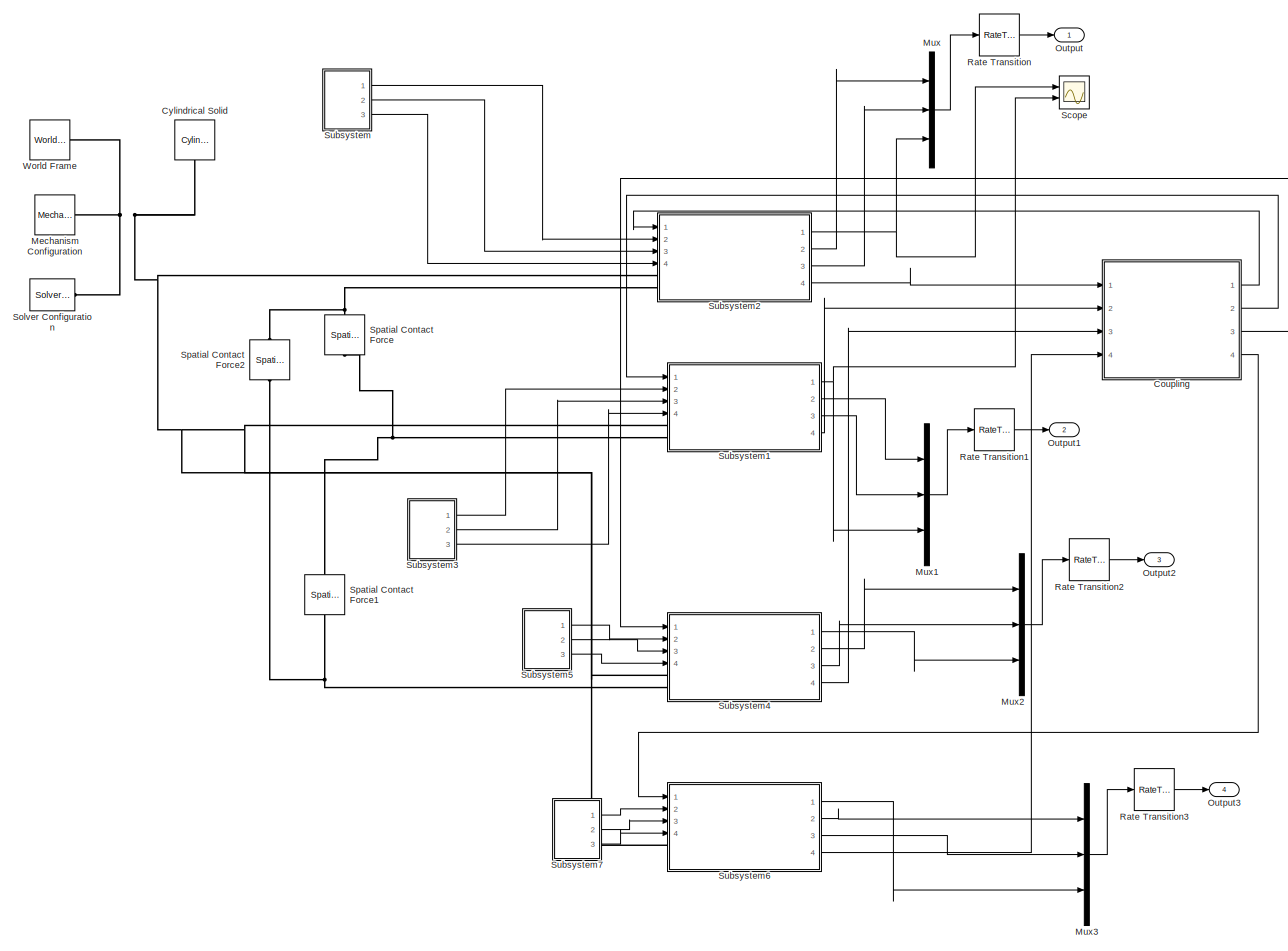
[diagram: root canvas - part 1/1, most of the canvas]
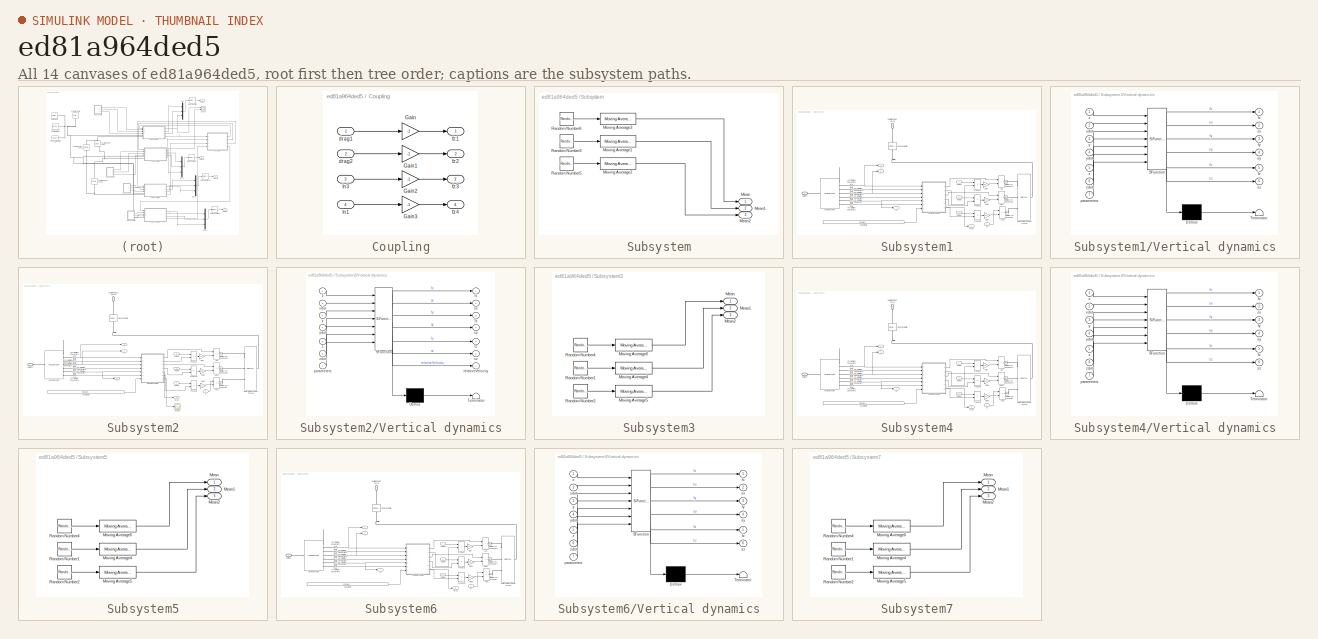
[diagram: thumbnail index - all 14 canvases of the model, root first then tree order]
MODEL slx_ed81a964ded5
KIND model
CONFIG AbsTol = auto
CONFIG EnableMultiTasking = off
CONFIG FixedStep = 0.001
CONFIG InitFcn = seed1 = randi(100000);\nseed2 = randi(200000);
CONFIG MaxStep = auto
CONFIG MinStep = auto
CONFIG RelTol = 1e-3
CONFIG SampleTimeConstraint = Unconstrained
CONFIG SolverName = VariableStepAuto
CONFIG StartTime = 0.0
CONFIG StopTime = 60*5
WORKSPACE source: mxarray member
WORKSPACE dCoupling = 10
WORKSPACE kCoupling = 10
BLOCK [SubSystem] Coupling
  Ports = [4, 4]
  RequestExecContextInheritance = off
BLOCK [Gain] Coupling/Gain
  Gain = -1
BLOCK [Gain] Coupling/Gain1
  Gain = -1
BLOCK [Gain] Coupling/Gain2
  Gain = -1
BLOCK [Gain] Coupling/Gain3
  Gain = -1
BLOCK [Inport] Coupling/In1
  Port = 4
BLOCK [Inport] Coupling/In3
  Port = 3
BLOCK [Inport] Coupling/drag1
BLOCK [Inport] Coupling/drag2
  Port = 2
BLOCK [Outport] Coupling/fz1
BLOCK [Outport] Coupling/fz2
  Port = 2
BLOCK [Outport] Coupling/fz3
  Port = 3
BLOCK [Outport] Coupling/fz4
  Port = 4
BLOCK [Reference] Cylindrical Solid  REF=sm_lib/Body Elements/Cylindrical Solid
  NameLocation = left
  Ports = [0, 0, 0, 0, 0, 0, 1]
  SourceBlock = sm_lib/Body Elements/Cylindrical Solid
  SourceProductBaseCode = MS
  SourceType = Cylindrical Solid
BLOCK [Reference] Mechanism Configuration  REF=sm_lib/Utilities/Mechanism
Configuration
  Ports = [0, 0, 0, 0, 0, 0, 1]
  SourceBlock = sm_lib/Utilities/Mechanism\nConfiguration
  SourceProductBaseCode = MS
  SourceType = Mechanism\nConfiguration
BLOCK [Mux] Mux
  DisplayOption = bar
  Inputs = 3
  Ports = [3, 1]
BLOCK [Mux] Mux1
  DisplayOption = bar
  Inputs = 3
  Ports = [3, 1]
BLOCK [Mux] Mux2
  DisplayOption = bar
  Inputs = 3
  Ports = [3, 1]
BLOCK [Mux] Mux3
  DisplayOption = bar
  Inputs = 3
  Ports = [3, 1]
BLOCK [Outport] Output
BLOCK [Outport] Output1
  Port = 2
BLOCK [Outport] Output2
  Port = 3
BLOCK [Outport] Output3
  Port = 4
BLOCK [RateTransition] Rate Transition
  OutPortSampleTime = 1/40
BLOCK [RateTransition] Rate Transition1
  OutPortSampleTime = 1/40
BLOCK [RateTransition] Rate Transition2
  OutPortSampleTime = 1/40
BLOCK [RateTransition] Rate Transition3
  OutPortSampleTime = 1/40
BLOCK [Scope] Scope
  Floating = off
  NumInputPorts = 2
  Ports = [2]
  ScopeSpecificationString = Simulink.scopes.TimeScopeBlockCfg('CurrentConfiguration', extmgr.ConfigurationSet(extmgr.Configuration('Core','General UI',true),extmgr.Configuration('Core','Source UI',true),extmgr.Configuration('Sources','WiredSimulink',true),extmgr.Configuration('Visuals','Time Domain',true,'SerializedDisplays',{struct('MinYLimReal','-0.06254','MaxYLimReal','0.5625','YLabelReal','','MinYLimMag','0.00000','MaxYL...<+1446ch>
BLOCK [Reference] Solver Configuration  REF=nesl_utility/Solver
Configuration
  Ports = [0, 0, 0, 0, 0, 0, 1]
  SourceBlock = nesl_utility/Solver\nConfiguration
  SourceProductBaseCode = SS
  SourceType = Solver\nConfiguration
BLOCK [Reference] Spatial Contact Force  REF=sm_lib/Forces and
Torques/Spatial
Contact Force
  NameLocation = left
  Ports = [0, 0, 0, 0, 0, 1, 1]
  SourceBlock = sm_lib/Forces and\nTorques/Spatial\nContact Force
  SourceProductBaseCode = MS
  SourceType = Spatial\nContact Force
BLOCK [Reference] Spatial Contact Force1  REF=sm_lib/Forces and
Torques/Spatial
Contact Force
  NameLocation = left
  Ports = [0, 0, 0, 0, 0, 1, 1]
  SourceBlock = sm_lib/Forces and\nTorques/Spatial\nContact Force
  SourceProductBaseCode = MS
  SourceType = Spatial\nContact Force
BLOCK [Reference] Spatial Contact Force2  REF=sm_lib/Forces and
Torques/Spatial
Contact Force
  NameLocation = left
  Ports = [0, 0, 0, 0, 0, 1, 1]
  SourceBlock = sm_lib/Forces and\nTorques/Spatial\nContact Force
  SourceProductBaseCode = MS
  SourceType = Spatial\nContact Force
BLOCK [SubSystem] Subsystem
  Ports = [0, 3]
  RequestExecContextInheritance = off
BLOCK [Outport] Subsystem/ Mean
BLOCK [Outport] Subsystem/ Mean1
  Port = 2
BLOCK [Outport] Subsystem/ Mean2
  Port = 3
BLOCK [Reference] Subsystem/Moving Average1  REF=eeGeneralControl/Moving Average
  Ports = [1, 1]
  SourceBlock = eeGeneralControl/Moving Average
  SourceProductBaseCode = PS
  SourceType = Moving Average
BLOCK [Reference] Subsystem/Moving Average2  REF=eeGeneralControl/Moving Average
  Ports = [1, 1]
  SourceBlock = eeGeneralControl/Moving Average
  SourceProductBaseCode = PS
  SourceType = Moving Average
BLOCK [Reference] Subsystem/Moving Average3  REF=eeGeneralControl/Moving Average
  Ports = [1, 1]
  SourceBlock = eeGeneralControl/Moving Average
  SourceProductBaseCode = PS
  SourceType = Moving Average
BLOCK [RandomNumber] Subsystem/Random Number3
  SampleTime = nS
  Seed = seedY
  Variance = nH
BLOCK [RandomNumber] Subsystem/Random Number5
  SampleTime = nS
  Seed = seedZ
  Variance = nV
BLOCK [RandomNumber] Subsystem/Random Number6
  SampleTime = nS
  Seed = seedX
  Variance = nH
BLOCK [SubSystem] Subsystem1
  Ports = [4, 4, 0, 0, 0, 2]
  RequestExecContextInheritance = off
BLOCK [Sum] Subsystem1/Add
  IconShape = rectangular
  Ports = [2, 1]
BLOCK [Sum] Subsystem1/Add1
  IconShape = rectangular
  Ports = [2, 1]
BLOCK [Sum] Subsystem1/Add2
  IconShape = rectangular
  Inputs = -+
  Ports = [2, 1]
BLOCK [PMIOPort] Subsystem1/Balloon
  Side = Left
BLOCK [Reference] Subsystem1/Cartesian Joint  REF=sm_lib/Joints/Cartesian
Joint
  Ports = [0, 0, 0, 0, 0, 1, 7]
  SourceBlock = sm_lib/Joints/Cartesian\nJoint
  SourceProductBaseCode = MS
  SourceType = Cartesian\nJoint
BLOCK [Constant] Subsystem1/Constants
  Value = [Cd, balloonRadius, rn, theta V0,normalScaling]
BLOCK [Reference] Subsystem1/External Force and Torque  REF=sm_lib/Forces and
Torques/External Force
and Torque
  Ports = [0, 0, 0, 0, 0, 3, 1]
  SourceBlock = sm_lib/Forces and\nTorques/External Force\nand Torque
  SourceProductBaseCode = MS
  SourceType = External Force\nand Torque
BLOCK [Gain] Subsystem1/Gain
  Gain = 0.1
BLOCK [Gain] Subsystem1/Gain1
  Gain = 0.1
BLOCK [Gain] Subsystem1/Gain2
  Gain = 0.1
BLOCK [Reference] Subsystem1/PS-Simulink Converter  REF=nesl_utility/PS-Simulink
Converter
  Ports = [0, 1, 0, 0, 0, 1]
  SourceBlock = nesl_utility/PS-Simulink\nConverter
  SourceProductBaseCode = SS
  SourceType = PS-Simulink\nConverter
BLOCK [Reference] Subsystem1/PS-Simulink Converter1  REF=nesl_utility/PS-Simulink
Converter
  Ports = [0, 1, 0, 0, 0, 1]
  SourceBlock = nesl_utility/PS-Simulink\nConverter
  SourceProductBaseCode = SS
  SourceType = PS-Simulink\nConverter
BLOCK [Reference] Subsystem1/PS-Simulink Converter2  REF=nesl_utility/PS-Simulink
Converter
  Ports = [0, 1, 0, 0, 0, 1]
  SourceBlock = nesl_utility/PS-Simulink\nConverter
  SourceProductBaseCode = SS
  SourceType = PS-Simulink\nConverter
BLOCK [Reference] Subsystem1/PS-Simulink Converter3  REF=nesl_utility/PS-Simulink
Converter
  Ports = [0, 1, 0, 0, 0, 1]
  SourceBlock = nesl_utility/PS-Simulink\nConverter
  SourceProductBaseCode = SS
  SourceType = PS-Simulink\nConverter
BLOCK [Reference] Subsystem1/PS-Simulink Converter4  REF=nesl_utility/PS-Simulink
Converter
  Ports = [0, 1, 0, 0, 0, 1]
  SourceBlock = nesl_utility/PS-Simulink\nConverter
  SourceProductBaseCode = SS
  SourceType = PS-Simulink\nConverter
BLOCK [Reference] Subsystem1/PS-Simulink Converter5  REF=nesl_utility/PS-Simulink
Converter
  Ports = [0, 1, 0, 0, 0, 1]
  SourceBlock = nesl_utility/PS-Simulink\nConverter
  SourceProductBaseCode = SS
  SourceType = PS-Simulink\nConverter
BLOCK [Product] Subsystem1/Product
  Ports = [2, 1]
BLOCK [Product] Subsystem1/Product1
  Ports = [2, 1]
BLOCK [Product] Subsystem1/Product2
  Ports = [2, 1]
BLOCK [Reference] Subsystem1/Simulink-PS Converter  REF=nesl_utility/Simulink-PS
Converter
  Ports = [1, 0, 0, 0, 0, 0, 1]
  SourceBlock = nesl_utility/Simulink-PS\nConverter
  SourceProductBaseCode = SS
  SourceType = Simulink-PS\nConverter
BLOCK [Reference] Subsystem1/Simulink-PS Converter1  REF=nesl_utility/Simulink-PS
Converter
  Ports = [1, 0, 0, 0, 0, 0, 1]
  SourceBlock = nesl_utility/Simulink-PS\nConverter
  SourceProductBaseCode = SS
  SourceType = Simulink-PS\nConverter
BLOCK [Reference] Subsystem1/Simulink-PS Converter2  REF=nesl_utility/Simulink-PS
Converter
  Ports = [1, 0, 0, 0, 0, 0, 1]
  SourceBlock = nesl_utility/Simulink-PS\nConverter
  SourceProductBaseCode = SS
  SourceType = Simulink-PS\nConverter
BLOCK [PMIOPort] Subsystem1/Spatial Contact Force
  NameLocation = left
  Port = 2
  Side = Left
BLOCK [Reference] Subsystem1/Spherical Solid  REF=sm_lib/Body Elements/Spherical Solid
  NameLocation = left
  Ports = [0, 0, 0, 0, 0, 1, 1]
  SourceBlock = sm_lib/Body Elements/Spherical Solid
  SourceProductBaseCode = MS
  SourceType = Spherical Solid
BLOCK [SubSystem] Subsystem1/Vertical dynamics
  ErrorFcn = Stateflow.Translate.translate
  PermitHierarchicalResolution = ExplicitOnly
  Ports = [7, 6]
  RequestExecContextInheritance = off
  SFBlockType = MATLAB Function
  TreatAsAtomicUnit = on
BLOCK [Demux] Subsystem1/Vertical dynamics/ Demux 
  Outputs = 1
  Ports = [1, 1]
BLOCK [S-Function] Subsystem1/Vertical dynamics/ SFunction 
  EnableBusSupport = on
  FunctionName = sf_sfun
  PortCounts = [7 7]
  Ports = [7, 7]
  SFcnIsStateOwnerBlock = off
  SFunctionDeploymentMode = off
  Tag = Stateflow S-Function 4
BLOCK [Terminator] Subsystem1/Vertical dynamics/ Terminator 
BLOCK [Outport] Subsystem1/Vertical dynamics/fx
BLOCK [Outport] Subsystem1/Vertical dynamics/fy
  Port = 3
BLOCK [Outport] Subsystem1/Vertical dynamics/fz
  Port = 5
BLOCK [Inport] Subsystem1/Vertical dynamics/parameters
  Port = 7
BLOCK [Outport] Subsystem1/Vertical dynamics/sx
  Port = 2
BLOCK [Outport] Subsystem1/Vertical dynamics/sy
  Port = 4
BLOCK [Outport] Subsystem1/Vertical dynamics/sz
  Port = 6
BLOCK [Inport] Subsystem1/Vertical dynamics/x
BLOCK [Inport] Subsystem1/Vertical dynamics/xdot
  Port = 2
BLOCK [Inport] Subsystem1/Vertical dynamics/y
  Port = 3
BLOCK [Inport] Subsystem1/Vertical dynamics/ydot
  Port = 4
BLOCK [Inport] Subsystem1/Vertical dynamics/z
  Port = 5
BLOCK [Inport] Subsystem1/Vertical dynamics/zdot
  Port = 6
BLOCK [Inport] Subsystem1/X Noise
  Port = 2
BLOCK [Inport] Subsystem1/Y Noise
  Port = 3
BLOCK [Inport] Subsystem1/Z Noise
  Port = 4
BLOCK [Outport] Subsystem1/drag
  NameLocation = top
  Port = 4
BLOCK [Inport] Subsystem1/fz
BLOCK [Outport] Subsystem1/x
  Port = 2
BLOCK [Outport] Subsystem1/y
  Port = 3
BLOCK [Outport] Subsystem1/z
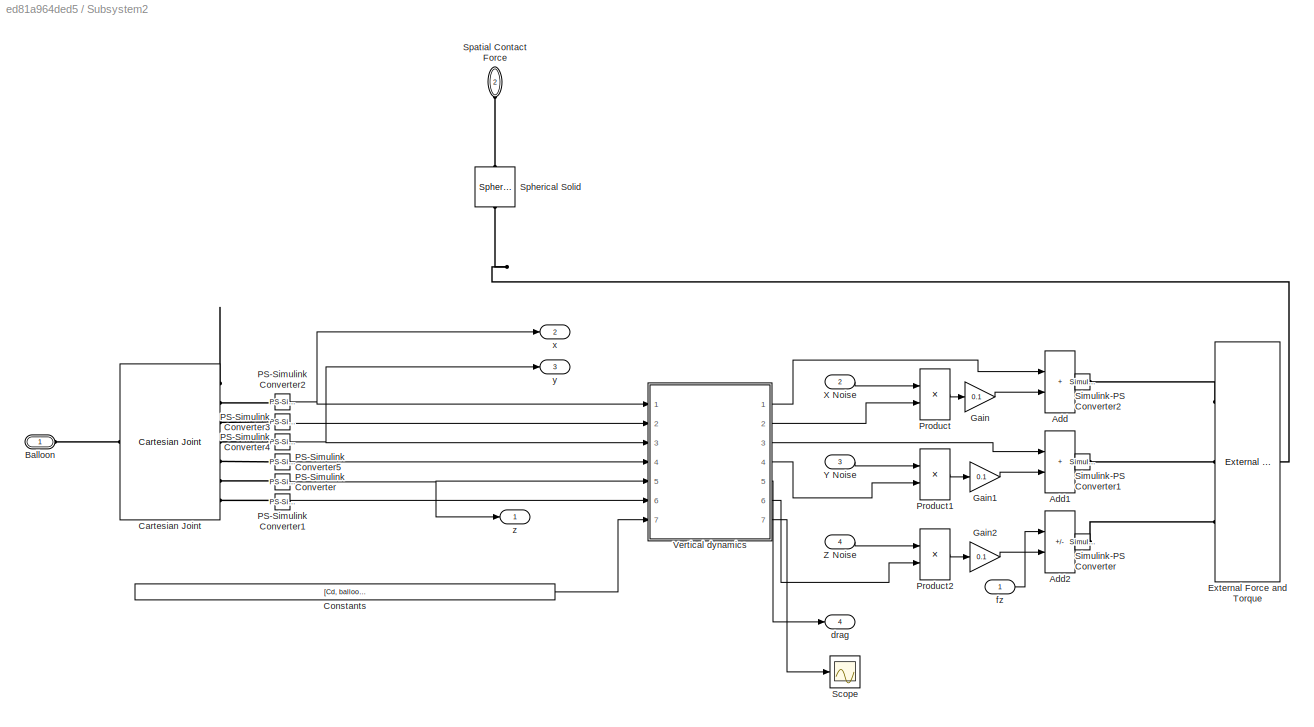
BLOCK [SubSystem] Subsystem2
  Ports = [4, 4, 0, 0, 0, 2]
  RequestExecContextInheritance = off
BLOCK [Sum] Subsystem2/Add
  IconShape = rectangular
  Ports = [2, 1]
BLOCK [Sum] Subsystem2/Add1
  IconShape = rectangular
  Ports = [2, 1]
BLOCK [Sum] Subsystem2/Add2
  IconShape = rectangular
  Inputs = -+
  Ports = [2, 1]
BLOCK [PMIOPort] Subsystem2/Balloon
  Side = Left
BLOCK [Reference] Subsystem2/Cartesian Joint  REF=sm_lib/Joints/Cartesian
Joint
  Ports = [0, 0, 0, 0, 0, 1, 7]
  SourceBlock = sm_lib/Joints/Cartesian\nJoint
  SourceProductBaseCode = MS
  SourceType = Cartesian\nJoint
BLOCK [Constant] Subsystem2/Constants
  Value = [Cd, balloonRadius, rn, theta V0,normalScaling]
BLOCK [Reference] Subsystem2/External Force and Torque  REF=sm_lib/Forces and
Torques/External Force
and Torque
  Ports = [0, 0, 0, 0, 0, 3, 1]
  SourceBlock = sm_lib/Forces and\nTorques/External Force\nand Torque
  SourceProductBaseCode = MS
  SourceType = External Force\nand Torque
BLOCK [Gain] Subsystem2/Gain
  Gain = 0.1
BLOCK [Gain] Subsystem2/Gain1
  Gain = 0.1
BLOCK [Gain] Subsystem2/Gain2
  Gain = 0.1
BLOCK [Reference] Subsystem2/PS-Simulink Converter  REF=nesl_utility/PS-Simulink
Converter
  Ports = [0, 1, 0, 0, 0, 1]
  SourceBlock = nesl_utility/PS-Simulink\nConverter
  SourceProductBaseCode = SS
  SourceType = PS-Simulink\nConverter
BLOCK [Reference] Subsystem2/PS-Simulink Converter1  REF=nesl_utility/PS-Simulink
Converter
  Ports = [0, 1, 0, 0, 0, 1]
  SourceBlock = nesl_utility/PS-Simulink\nConverter
  SourceProductBaseCode = SS
  SourceType = PS-Simulink\nConverter
BLOCK [Reference] Subsystem2/PS-Simulink Converter2  REF=nesl_utility/PS-Simulink
Converter
  Ports = [0, 1, 0, 0, 0, 1]
  SourceBlock = nesl_utility/PS-Simulink\nConverter
  SourceProductBaseCode = SS
  SourceType = PS-Simulink\nConverter
BLOCK [Reference] Subsystem2/PS-Simulink Converter3  REF=nesl_utility/PS-Simulink
Converter
  Ports = [0, 1, 0, 0, 0, 1]
  SourceBlock = nesl_utility/PS-Simulink\nConverter
  SourceProductBaseCode = SS
  SourceType = PS-Simulink\nConverter
BLOCK [Reference] Subsystem2/PS-Simulink Converter4  REF=nesl_utility/PS-Simulink
Converter
  Ports = [0, 1, 0, 0, 0, 1]
  SourceBlock = nesl_utility/PS-Simulink\nConverter
  SourceProductBaseCode = SS
  SourceType = PS-Simulink\nConverter
BLOCK [Reference] Subsystem2/PS-Simulink Converter5  REF=nesl_utility/PS-Simulink
Converter
  Ports = [0, 1, 0, 0, 0, 1]
  SourceBlock = nesl_utility/PS-Simulink\nConverter
  SourceProductBaseCode = SS
  SourceType = PS-Simulink\nConverter
BLOCK [Product] Subsystem2/Product
  Ports = [2, 1]
BLOCK [Product] Subsystem2/Product1
  Ports = [2, 1]
BLOCK [Product] Subsystem2/Product2
  Ports = [2, 1]
BLOCK [Scope] Subsystem2/Scope
  Floating = off
  NumInputPorts = 1
  Ports = [1]
  ScopeSpecificationString = Simulink.scopes.TimeScopeBlockCfg('CurrentConfiguration', extmgr.ConfigurationSet(extmgr.Configuration('Core','General UI',true),extmgr.Configuration('Core','Source UI',true),extmgr.Configuration('Sources','WiredSimulink',true,'DataLoggingLimitDataPoints',true,'DataLoggingSaveFormat','Array','DataLoggingDecimation','1','DataLoggingVariableName','ScopeData1'),extmgr.Configuration('Visuals','Time Do...<+1662ch>
BLOCK [Reference] Subsystem2/Simulink-PS Converter  REF=nesl_utility/Simulink-PS
Converter
  Ports = [1, 0, 0, 0, 0, 0, 1]
  SourceBlock = nesl_utility/Simulink-PS\nConverter
  SourceProductBaseCode = SS
  SourceType = Simulink-PS\nConverter
BLOCK [Reference] Subsystem2/Simulink-PS Converter1  REF=nesl_utility/Simulink-PS
Converter
  Ports = [1, 0, 0, 0, 0, 0, 1]
  SourceBlock = nesl_utility/Simulink-PS\nConverter
  SourceProductBaseCode = SS
  SourceType = Simulink-PS\nConverter
BLOCK [Reference] Subsystem2/Simulink-PS Converter2  REF=nesl_utility/Simulink-PS
Converter
  Ports = [1, 0, 0, 0, 0, 0, 1]
  SourceBlock = nesl_utility/Simulink-PS\nConverter
  SourceProductBaseCode = SS
  SourceType = Simulink-PS\nConverter
BLOCK [PMIOPort] Subsystem2/Spatial Contact Force
  NameLocation = left
  Port = 2
  Side = Left
BLOCK [Reference] Subsystem2/Spherical Solid  REF=sm_lib/Body Elements/Spherical Solid
  NameLocation = left
  Ports = [0, 0, 0, 0, 0, 1, 1]
  SourceBlock = sm_lib/Body Elements/Spherical Solid
  SourceProductBaseCode = MS
  SourceType = Spherical Solid
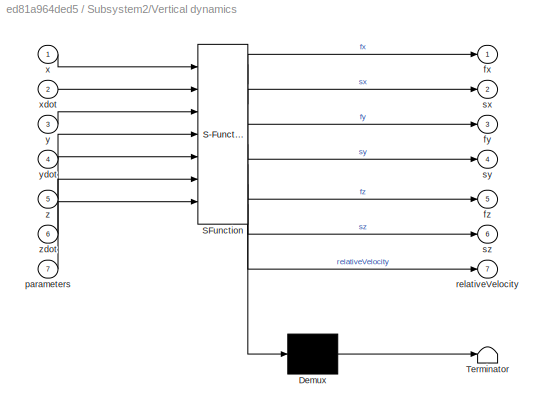
BLOCK [SubSystem] Subsystem2/Vertical dynamics
  ErrorFcn = Stateflow.Translate.translate
  PermitHierarchicalResolution = ExplicitOnly
  Ports = [7, 7]
  RequestExecContextInheritance = off
  SFBlockType = MATLAB Function
  TreatAsAtomicUnit = on
BLOCK [Demux] Subsystem2/Vertical dynamics/ Demux 
  Outputs = 1
  Ports = [1, 1]
BLOCK [S-Function] Subsystem2/Vertical dynamics/ SFunction 
  EnableBusSupport = on
  FunctionName = sf_sfun
  PortCounts = [7 8]
  Ports = [7, 8]
  SFcnIsStateOwnerBlock = off
  SFunctionDeploymentMode = off
  Tag = Stateflow S-Function 3
BLOCK [Terminator] Subsystem2/Vertical dynamics/ Terminator 
BLOCK [Outport] Subsystem2/Vertical dynamics/fx
BLOCK [Outport] Subsystem2/Vertical dynamics/fy
  Port = 3
BLOCK [Outport] Subsystem2/Vertical dynamics/fz
  Port = 5
BLOCK [Inport] Subsystem2/Vertical dynamics/parameters
  Port = 7
BLOCK [Outport] Subsystem2/Vertical dynamics/relativeVelocity
  Port = 7
BLOCK [Outport] Subsystem2/Vertical dynamics/sx
  Port = 2
BLOCK [Outport] Subsystem2/Vertical dynamics/sy
  Port = 4
BLOCK [Outport] Subsystem2/Vertical dynamics/sz
  Port = 6
BLOCK [Inport] Subsystem2/Vertical dynamics/x
BLOCK [Inport] Subsystem2/Vertical dynamics/xdot
  Port = 2
BLOCK [Inport] Subsystem2/Vertical dynamics/y
  Port = 3
BLOCK [Inport] Subsystem2/Vertical dynamics/ydot
  Port = 4
BLOCK [Inport] Subsystem2/Vertical dynamics/z
  Port = 5
BLOCK [Inport] Subsystem2/Vertical dynamics/zdot
  Port = 6
BLOCK [Inport] Subsystem2/X Noise
  Port = 2
BLOCK [Inport] Subsystem2/Y Noise
  Port = 3
BLOCK [Inport] Subsystem2/Z Noise
  Port = 4
BLOCK [Outport] Subsystem2/drag
  Port = 4
BLOCK [Inport] Subsystem2/fz
BLOCK [Outport] Subsystem2/x
  Port = 2
BLOCK [Outport] Subsystem2/y
  Port = 3
BLOCK [Outport] Subsystem2/z
BLOCK [SubSystem] Subsystem3
  Ports = [0, 3]
  RequestExecContextInheritance = off
BLOCK [Outport] Subsystem3/ Mean
BLOCK [Outport] Subsystem3/ Mean1
  Port = 2
BLOCK [Outport] Subsystem3/ Mean2
  Port = 3
BLOCK [Reference] Subsystem3/Moving Average4  REF=eeGeneralControl/Moving Average
  Ports = [1, 1]
  SourceBlock = eeGeneralControl/Moving Average
  SourceProductBaseCode = PS
  SourceType = Moving Average
BLOCK [Reference] Subsystem3/Moving Average5  REF=eeGeneralControl/Moving Average
  Ports = [1, 1]
  SourceBlock = eeGeneralControl/Moving Average
  SourceProductBaseCode = PS
  SourceType = Moving Average
BLOCK [Reference] Subsystem3/Moving Average6  REF=eeGeneralControl/Moving Average
  Ports = [1, 1]
  SourceBlock = eeGeneralControl/Moving Average
  SourceProductBaseCode = PS
  SourceType = Moving Average
BLOCK [RandomNumber] Subsystem3/Random Number1
  SampleTime = nS
  Seed = seedY1
  Variance = nH
BLOCK [RandomNumber] Subsystem3/Random Number2
  SampleTime = nS
  Seed = seedZ1
  Variance = nV
BLOCK [RandomNumber] Subsystem3/Random Number4
  SampleTime = nS
  Seed = seedX1
  Variance = nH
BLOCK [SubSystem] Subsystem4
  Ports = [4, 4, 0, 0, 0, 2]
  RequestExecContextInheritance = off
BLOCK [Sum] Subsystem4/Add
  IconShape = rectangular
  Ports = [2, 1]
BLOCK [Sum] Subsystem4/Add1
  IconShape = rectangular
  Ports = [2, 1]
BLOCK [Sum] Subsystem4/Add2
  IconShape = rectangular
  Inputs = -+
  Ports = [2, 1]
BLOCK [PMIOPort] Subsystem4/Balloon
  Side = Left
BLOCK [Reference] Subsystem4/Cartesian Joint  REF=sm_lib/Joints/Cartesian
Joint
  Ports = [0, 0, 0, 0, 0, 1, 7]
  SourceBlock = sm_lib/Joints/Cartesian\nJoint
  SourceProductBaseCode = MS
  SourceType = Cartesian\nJoint
BLOCK [Constant] Subsystem4/Constants
  Value = [Cd, balloonRadius, rn, theta V0,normalScaling]
BLOCK [Reference] Subsystem4/External Force and Torque  REF=sm_lib/Forces and
Torques/External Force
and Torque
  Ports = [0, 0, 0, 0, 0, 3, 1]
  SourceBlock = sm_lib/Forces and\nTorques/External Force\nand Torque
  SourceProductBaseCode = MS
  SourceType = External Force\nand Torque
BLOCK [Gain] Subsystem4/Gain
  Gain = 0.1
BLOCK [Gain] Subsystem4/Gain1
  Gain = 0.1
BLOCK [Gain] Subsystem4/Gain2
  Gain = 0.1
BLOCK [Reference] Subsystem4/PS-Simulink Converter  REF=nesl_utility/PS-Simulink
Converter
  Ports = [0, 1, 0, 0, 0, 1]
  SourceBlock = nesl_utility/PS-Simulink\nConverter
  SourceProductBaseCode = SS
  SourceType = PS-Simulink\nConverter
BLOCK [Reference] Subsystem4/PS-Simulink Converter1  REF=nesl_utility/PS-Simulink
Converter
  Ports = [0, 1, 0, 0, 0, 1]
  SourceBlock = nesl_utility/PS-Simulink\nConverter
  SourceProductBaseCode = SS
  SourceType = PS-Simulink\nConverter
BLOCK [Reference] Subsystem4/PS-Simulink Converter2  REF=nesl_utility/PS-Simulink
Converter
  Ports = [0, 1, 0, 0, 0, 1]
  SourceBlock = nesl_utility/PS-Simulink\nConverter
  SourceProductBaseCode = SS
  SourceType = PS-Simulink\nConverter
BLOCK [Reference] Subsystem4/PS-Simulink Converter3  REF=nesl_utility/PS-Simulink
Converter
  Ports = [0, 1, 0, 0, 0, 1]
  SourceBlock = nesl_utility/PS-Simulink\nConverter
  SourceProductBaseCode = SS
  SourceType = PS-Simulink\nConverter
BLOCK [Reference] Subsystem4/PS-Simulink Converter4  REF=nesl_utility/PS-Simulink
Converter
  Ports = [0, 1, 0, 0, 0, 1]
  SourceBlock = nesl_utility/PS-Simulink\nConverter
  SourceProductBaseCode = SS
  SourceType = PS-Simulink\nConverter
BLOCK [Reference] Subsystem4/PS-Simulink Converter5  REF=nesl_utility/PS-Simulink
Converter
  Ports = [0, 1, 0, 0, 0, 1]
  SourceBlock = nesl_utility/PS-Simulink\nConverter
  SourceProductBaseCode = SS
  SourceType = PS-Simulink\nConverter
BLOCK [Product] Subsystem4/Product
  Ports = [2, 1]
BLOCK [Product] Subsystem4/Product1
  Ports = [2, 1]
BLOCK [Product] Subsystem4/Product2
  Ports = [2, 1]
BLOCK [Reference] Subsystem4/Simulink-PS Converter  REF=nesl_utility/Simulink-PS
Converter
  Ports = [1, 0, 0, 0, 0, 0, 1]
  SourceBlock = nesl_utility/Simulink-PS\nConverter
  SourceProductBaseCode = SS
  SourceType = Simulink-PS\nConverter
BLOCK [Reference] Subsystem4/Simulink-PS Converter1  REF=nesl_utility/Simulink-PS
Converter
  Ports = [1, 0, 0, 0, 0, 0, 1]
  SourceBlock = nesl_utility/Simulink-PS\nConverter
  SourceProductBaseCode = SS
  SourceType = Simulink-PS\nConverter
BLOCK [Reference] Subsystem4/Simulink-PS Converter2  REF=nesl_utility/Simulink-PS
Converter
  Ports = [1, 0, 0, 0, 0, 0, 1]
  SourceBlock = nesl_utility/Simulink-PS\nConverter
  SourceProductBaseCode = SS
  SourceType = Simulink-PS\nConverter
BLOCK [PMIOPort] Subsystem4/Spatial Contact Force
  NameLocation = left
  Port = 2
  Side = Left
BLOCK [Reference] Subsystem4/Spherical Solid  REF=sm_lib/Body Elements/Spherical Solid
  NameLocation = left
  Ports = [0, 0, 0, 0, 0, 1, 1]
  SourceBlock = sm_lib/Body Elements/Spherical Solid
  SourceProductBaseCode = MS
  SourceType = Spherical Solid
BLOCK [SubSystem] Subsystem4/Vertical dynamics
  ErrorFcn = Stateflow.Translate.translate
  PermitHierarchicalResolution = ExplicitOnly
  Ports = [7, 6]
  RequestExecContextInheritance = off
  SFBlockType = MATLAB Function
  TreatAsAtomicUnit = on
BLOCK [Demux] Subsystem4/Vertical dynamics/ Demux 
  Outputs = 1
  Ports = [1, 1]
BLOCK [S-Function] Subsystem4/Vertical dynamics/ SFunction 
  EnableBusSupport = on
  FunctionName = sf_sfun
  PortCounts = [7 7]
  Ports = [7, 7]
  SFcnIsStateOwnerBlock = off
  SFunctionDeploymentMode = off
  Tag = Stateflow S-Function 6
BLOCK [Terminator] Subsystem4/Vertical dynamics/ Terminator 
BLOCK [Outport] Subsystem4/Vertical dynamics/fx
BLOCK [Outport] Subsystem4/Vertical dynamics/fy
  Port = 3
BLOCK [Outport] Subsystem4/Vertical dynamics/fz
  Port = 5
BLOCK [Inport] Subsystem4/Vertical dynamics/parameters
  Port = 7
BLOCK [Outport] Subsystem4/Vertical dynamics/sx
  Port = 2
BLOCK [Outport] Subsystem4/Vertical dynamics/sy
  Port = 4
BLOCK [Outport] Subsystem4/Vertical dynamics/sz
  Port = 6
BLOCK [Inport] Subsystem4/Vertical dynamics/x
BLOCK [Inport] Subsystem4/Vertical dynamics/xdot
  Port = 2
BLOCK [Inport] Subsystem4/Vertical dynamics/y
  Port = 3
BLOCK [Inport] Subsystem4/Vertical dynamics/ydot
  Port = 4
BLOCK [Inport] Subsystem4/Vertical dynamics/z
  Port = 5
BLOCK [Inport] Subsystem4/Vertical dynamics/zdot
  Port = 6
BLOCK [Inport] Subsystem4/X Noise
  Port = 2
BLOCK [Inport] Subsystem4/Y Noise
  Port = 3
BLOCK [Inport] Subsystem4/Z Noise
  Port = 4
BLOCK [Outport] Subsystem4/drag
  NameLocation = top
  Port = 4
BLOCK [Inport] Subsystem4/fz
BLOCK [Outport] Subsystem4/x
  Port = 2
BLOCK [Outport] Subsystem4/y
  Port = 3
BLOCK [Outport] Subsystem4/z
BLOCK [SubSystem] Subsystem5
  Ports = [0, 3]
  RequestExecContextInheritance = off
BLOCK [Outport] Subsystem5/ Mean
BLOCK [Outport] Subsystem5/ Mean1
  Port = 2
BLOCK [Outport] Subsystem5/ Mean2
  Port = 3
BLOCK [Reference] Subsystem5/Moving Average4  REF=eeGeneralControl/Moving Average
  Ports = [1, 1]
  SourceBlock = eeGeneralControl/Moving Average
  SourceProductBaseCode = PS
  SourceType = Moving Average
BLOCK [Reference] Subsystem5/Moving Average5  REF=eeGeneralControl/Moving Average
  Ports = [1, 1]
  SourceBlock = eeGeneralControl/Moving Average
  SourceProductBaseCode = PS
  SourceType = Moving Average
BLOCK [Reference] Subsystem5/Moving Average6  REF=eeGeneralControl/Moving Average
  Ports = [1, 1]
  SourceBlock = eeGeneralControl/Moving Average
  SourceProductBaseCode = PS
  SourceType = Moving Average
BLOCK [RandomNumber] Subsystem5/Random Number1
  SampleTime = nS
  Seed = seedY1
  Variance = nH
BLOCK [RandomNumber] Subsystem5/Random Number2
  SampleTime = nS
  Seed = seedZ1
  Variance = nV
BLOCK [RandomNumber] Subsystem5/Random Number4
  SampleTime = nS
  Seed = seedX1
  Variance = nH
BLOCK [SubSystem] Subsystem6
  Ports = [4, 4, 0, 0, 0, 2]
  RequestExecContextInheritance = off
BLOCK [Sum] Subsystem6/Add
  IconShape = rectangular
  Ports = [2, 1]
BLOCK [Sum] Subsystem6/Add1
  IconShape = rectangular
  Ports = [2, 1]
BLOCK [Sum] Subsystem6/Add2
  IconShape = rectangular
  Inputs = -+
  Ports = [2, 1]
BLOCK [PMIOPort] Subsystem6/Balloon
  Side = Left
BLOCK [Reference] Subsystem6/Cartesian Joint  REF=sm_lib/Joints/Cartesian
Joint
  Ports = [0, 0, 0, 0, 0, 1, 7]
  SourceBlock = sm_lib/Joints/Cartesian\nJoint
  SourceProductBaseCode = MS
  SourceType = Cartesian\nJoint
BLOCK [Constant] Subsystem6/Constants
  Value = [Cd, balloonRadius, rn, theta V0,normalScaling]
BLOCK [Reference] Subsystem6/External Force and Torque  REF=sm_lib/Forces and
Torques/External Force
and Torque
  Ports = [0, 0, 0, 0, 0, 3, 1]
  SourceBlock = sm_lib/Forces and\nTorques/External Force\nand Torque
  SourceProductBaseCode = MS
  SourceType = External Force\nand Torque
BLOCK [Gain] Subsystem6/Gain
  Gain = 0.1
BLOCK [Gain] Subsystem6/Gain1
  Gain = 0.1
BLOCK [Gain] Subsystem6/Gain2
  Gain = 0.1
BLOCK [Reference] Subsystem6/PS-Simulink Converter  REF=nesl_utility/PS-Simulink
Converter
  Ports = [0, 1, 0, 0, 0, 1]
  SourceBlock = nesl_utility/PS-Simulink\nConverter
  SourceProductBaseCode = SS
  SourceType = PS-Simulink\nConverter
BLOCK [Reference] Subsystem6/PS-Simulink Converter1  REF=nesl_utility/PS-Simulink
Converter
  Ports = [0, 1, 0, 0, 0, 1]
  SourceBlock = nesl_utility/PS-Simulink\nConverter
  SourceProductBaseCode = SS
  SourceType = PS-Simulink\nConverter
BLOCK [Reference] Subsystem6/PS-Simulink Converter2  REF=nesl_utility/PS-Simulink
Converter
  Ports = [0, 1, 0, 0, 0, 1]
  SourceBlock = nesl_utility/PS-Simulink\nConverter
  SourceProductBaseCode = SS
  SourceType = PS-Simulink\nConverter
BLOCK [Reference] Subsystem6/PS-Simulink Converter3  REF=nesl_utility/PS-Simulink
Converter
  Ports = [0, 1, 0, 0, 0, 1]
  SourceBlock = nesl_utility/PS-Simulink\nConverter
  SourceProductBaseCode = SS
  SourceType = PS-Simulink\nConverter
BLOCK [Reference] Subsystem6/PS-Simulink Converter4  REF=nesl_utility/PS-Simulink
Converter
  Ports = [0, 1, 0, 0, 0, 1]
  SourceBlock = nesl_utility/PS-Simulink\nConverter
  SourceProductBaseCode = SS
  SourceType = PS-Simulink\nConverter
BLOCK [Reference] Subsystem6/PS-Simulink Converter5  REF=nesl_utility/PS-Simulink
Converter
  Ports = [0, 1, 0, 0, 0, 1]
  SourceBlock = nesl_utility/PS-Simulink\nConverter
  SourceProductBaseCode = SS
  SourceType = PS-Simulink\nConverter
BLOCK [Product] Subsystem6/Product
  Ports = [2, 1]
BLOCK [Product] Subsystem6/Product1
  Ports = [2, 1]
BLOCK [Product] Subsystem6/Product2
  Ports = [2, 1]
BLOCK [Reference] Subsystem6/Simulink-PS Converter  REF=nesl_utility/Simulink-PS
Converter
  Ports = [1, 0, 0, 0, 0, 0, 1]
  SourceBlock = nesl_utility/Simulink-PS\nConverter
  SourceProductBaseCode = SS
  SourceType = Simulink-PS\nConverter
BLOCK [Reference] Subsystem6/Simulink-PS Converter1  REF=nesl_utility/Simulink-PS
Converter
  Ports = [1, 0, 0, 0, 0, 0, 1]
  SourceBlock = nesl_utility/Simulink-PS\nConverter
  SourceProductBaseCode = SS
  SourceType = Simulink-PS\nConverter
BLOCK [Reference] Subsystem6/Simulink-PS Converter2  REF=nesl_utility/Simulink-PS
Converter
  Ports = [1, 0, 0, 0, 0, 0, 1]
  SourceBlock = nesl_utility/Simulink-PS\nConverter
  SourceProductBaseCode = SS
  SourceType = Simulink-PS\nConverter
BLOCK [PMIOPort] Subsystem6/Spatial Contact Force
  NameLocation = left
  Port = 2
  Side = Left
BLOCK [Reference] Subsystem6/Spherical Solid  REF=sm_lib/Body Elements/Spherical Solid
  NameLocation = left
  Ports = [0, 0, 0, 0, 0, 1, 1]
  SourceBlock = sm_lib/Body Elements/Spherical Solid
  SourceProductBaseCode = MS
  SourceType = Spherical Solid
BLOCK [SubSystem] Subsystem6/Vertical dynamics
  ErrorFcn = Stateflow.Translate.translate
  PermitHierarchicalResolution = ExplicitOnly
  Ports = [7, 6]
  RequestExecContextInheritance = off
  SFBlockType = MATLAB Function
  TreatAsAtomicUnit = on
BLOCK [Demux] Subsystem6/Vertical dynamics/ Demux 
  Outputs = 1
  Ports = [1, 1]
BLOCK [S-Function] Subsystem6/Vertical dynamics/ SFunction 
  EnableBusSupport = on
  FunctionName = sf_sfun
  PortCounts = [7 7]
  Ports = [7, 7]
  SFcnIsStateOwnerBlock = off
  SFunctionDeploymentMode = off
  Tag = Stateflow S-Function 1
BLOCK [Terminator] Subsystem6/Vertical dynamics/ Terminator 
BLOCK [Outport] Subsystem6/Vertical dynamics/fx
BLOCK [Outport] Subsystem6/Vertical dynamics/fy
  Port = 3
BLOCK [Outport] Subsystem6/Vertical dynamics/fz
  Port = 5
BLOCK [Inport] Subsystem6/Vertical dynamics/parameters
  Port = 7
BLOCK [Outport] Subsystem6/Vertical dynamics/sx
  Port = 2
BLOCK [Outport] Subsystem6/Vertical dynamics/sy
  Port = 4
BLOCK [Outport] Subsystem6/Vertical dynamics/sz
  Port = 6
BLOCK [Inport] Subsystem6/Vertical dynamics/x
BLOCK [Inport] Subsystem6/Vertical dynamics/xdot
  Port = 2
BLOCK [Inport] Subsystem6/Vertical dynamics/y
  Port = 3
BLOCK [Inport] Subsystem6/Vertical dynamics/ydot
  Port = 4
BLOCK [Inport] Subsystem6/Vertical dynamics/z
  Port = 5
BLOCK [Inport] Subsystem6/Vertical dynamics/zdot
  Port = 6
BLOCK [Inport] Subsystem6/X Noise
  Port = 2
BLOCK [Inport] Subsystem6/Y Noise
  Port = 3
BLOCK [Inport] Subsystem6/Z Noise
  Port = 4
BLOCK [Outport] Subsystem6/drag
  NameLocation = top
  Port = 4
BLOCK [Inport] Subsystem6/fz
BLOCK [Outport] Subsystem6/x
  Port = 2
BLOCK [Outport] Subsystem6/y
  Port = 3
BLOCK [Outport] Subsystem6/z
BLOCK [SubSystem] Subsystem7
  Ports = [0, 3]
  RequestExecContextInheritance = off
BLOCK [Outport] Subsystem7/ Mean
BLOCK [Outport] Subsystem7/ Mean1
  Port = 2
BLOCK [Outport] Subsystem7/ Mean2
  Port = 3
BLOCK [Reference] Subsystem7/Moving Average4  REF=eeGeneralControl/Moving Average
  Ports = [1, 1]
  SourceBlock = eeGeneralControl/Moving Average
  SourceProductBaseCode = PS
  SourceType = Moving Average
BLOCK [Reference] Subsystem7/Moving Average5  REF=eeGeneralControl/Moving Average
  Ports = [1, 1]
  SourceBlock = eeGeneralControl/Moving Average
  SourceProductBaseCode = PS
  SourceType = Moving Average
BLOCK [Reference] Subsystem7/Moving Average6  REF=eeGeneralControl/Moving Average
  Ports = [1, 1]
  SourceBlock = eeGeneralControl/Moving Average
  SourceProductBaseCode = PS
  SourceType = Moving Average
BLOCK [RandomNumber] Subsystem7/Random Number1
  SampleTime = nS
  Seed = seedY1
  Variance = nH
BLOCK [RandomNumber] Subsystem7/Random Number2
  SampleTime = nS
  Seed = seedZ1
  Variance = nV
BLOCK [RandomNumber] Subsystem7/Random Number4
  SampleTime = nS
  Seed = seedX1
  Variance = nH
BLOCK [Reference] World Frame  REF=sm_lib/Frames and
Transforms/World Frame
  Ports = [0, 0, 0, 0, 0, 0, 1]
  SourceBlock = sm_lib/Frames and\nTransforms/World Frame
  SourceProductBaseCode = MS
  SourceType = World Frame
LINE Coupling/Gain1:1 -> Coupling/fz2:1
LINE Coupling/Gain2:1 -> Coupling/fz3:1
LINE Coupling/Gain3:1 -> Coupling/fz4:1
LINE Coupling/Gain:1 -> Coupling/fz1:1
LINE Coupling/In1:1 -> Coupling/Gain3:1
LINE Coupling/In3:1 -> Coupling/Gain2:1
LINE Coupling/drag1:1 -> Coupling/Gain:1
LINE Coupling/drag2:1 -> Coupling/Gain1:1
LINE Coupling:1 -> Subsystem2:1
LINE Coupling:2 -> Subsystem1:1
LINE Coupling:3 -> Subsystem4:1
LINE Coupling:4 -> Subsystem6:1
LINE Mux1:1 -> Rate Transition1:1
LINE Mux2:1 -> Rate Transition2:1
LINE Mux3:1 -> Rate Transition3:1
LINE Mux:1 -> Rate Transition:1
LINE Rate Transition1:1 -> Output1:1
LINE Rate Transition2:1 -> Output2:1
LINE Rate Transition3:1 -> Output3:1
LINE Rate Transition:1 -> Output:1
LINE Subsystem/Moving Average1:1 -> Subsystem/ Mean1:1
LINE Subsystem/Moving Average2:1 -> Subsystem/ Mean2:1
LINE Subsystem/Moving Average3:1 -> Subsystem/ Mean:1
LINE Subsystem/Random Number3:1 -> Subsystem/Moving Average1:1
LINE Subsystem/Random Number5:1 -> Subsystem/Moving Average2:1
LINE Subsystem/Random Number6:1 -> Subsystem/Moving Average3:1
LINE Subsystem1/Add1:1 -> Subsystem1/Simulink-PS Converter1:1
LINE Subsystem1/Add2:1 -> Subsystem1/Simulink-PS Converter:1
LINE Subsystem1/Add:1 -> Subsystem1/Simulink-PS Converter2:1
LINE Subsystem1/Constants:1 -> Subsystem1/Vertical dynamics:7
LINE Subsystem1/Gain1:1 -> Subsystem1/Add1:2
LINE Subsystem1/Gain2:1 -> Subsystem1/Add2:2
LINE Subsystem1/Gain:1 -> Subsystem1/Add:2
LINE Subsystem1/PS-Simulink Converter1:1 -> Subsystem1/Vertical dynamics:6
NET Subsystem1/PS-Simulink Converter2:1 -> Subsystem1/Vertical dynamics:1, Subsystem1/x:1
LINE Subsystem1/PS-Simulink Converter3:1 -> Subsystem1/Vertical dynamics:2
NET Subsystem1/PS-Simulink Converter4:1 -> Subsystem1/Vertical dynamics:3, Subsystem1/y:1
LINE Subsystem1/PS-Simulink Converter5:1 -> Subsystem1/Vertical dynamics:4
NET Subsystem1/PS-Simulink Converter:1 -> Subsystem1/Vertical dynamics:5, Subsystem1/z:1
LINE Subsystem1/Product1:1 -> Subsystem1/Gain1:1
LINE Subsystem1/Product2:1 -> Subsystem1/Gain2:1
LINE Subsystem1/Product:1 -> Subsystem1/Gain:1
LINE Subsystem1/Vertical dynamics:1 -> Subsystem1/Add:1
LINE Subsystem1/Vertical dynamics:2 -> Subsystem1/Product:2
LINE Subsystem1/Vertical dynamics:3 -> Subsystem1/Add1:1
LINE Subsystem1/Vertical dynamics:4 -> Subsystem1/Product1:2
LINE Subsystem1/Vertical dynamics:5 -> Subsystem1/drag:1
LINE Subsystem1/Vertical dynamics:6 -> Subsystem1/Product2:2
LINE Subsystem1/X Noise:1 -> Subsystem1/Product:1
LINE Subsystem1/Y Noise:1 -> Subsystem1/Product1:1
LINE Subsystem1/Z Noise:1 -> Subsystem1/Product2:1
LINE Subsystem1/fz:1 -> Subsystem1/Add2:1
NET Subsystem1:1 -> Mux1:3, Scope:2
LINE Subsystem1:2 -> Mux1:1
LINE Subsystem1:3 -> Mux1:2
LINE Subsystem1:4 -> Coupling:2
LINE Subsystem2/Add1:1 -> Subsystem2/Simulink-PS Converter1:1
LINE Subsystem2/Add2:1 -> Subsystem2/Simulink-PS Converter:1
LINE Subsystem2/Add:1 -> Subsystem2/Simulink-PS Converter2:1
LINE Subsystem2/Constants:1 -> Subsystem2/Vertical dynamics:7
LINE Subsystem2/Gain1:1 -> Subsystem2/Add1:2
LINE Subsystem2/Gain2:1 -> Subsystem2/Add2:2
LINE Subsystem2/Gain:1 -> Subsystem2/Add:2
LINE Subsystem2/PS-Simulink Converter1:1 -> Subsystem2/Vertical dynamics:6
NET Subsystem2/PS-Simulink Converter2:1 -> Subsystem2/Vertical dynamics:1, Subsystem2/x:1
LINE Subsystem2/PS-Simulink Converter3:1 -> Subsystem2/Vertical dynamics:2
NET Subsystem2/PS-Simulink Converter4:1 -> Subsystem2/Vertical dynamics:3, Subsystem2/y:1
LINE Subsystem2/PS-Simulink Converter5:1 -> Subsystem2/Vertical dynamics:4
NET Subsystem2/PS-Simulink Converter:1 -> Subsystem2/Vertical dynamics:5, Subsystem2/z:1
LINE Subsystem2/Product1:1 -> Subsystem2/Gain1:1
LINE Subsystem2/Product2:1 -> Subsystem2/Gain2:1
LINE Subsystem2/Product:1 -> Subsystem2/Gain:1
LINE Subsystem2/Vertical dynamics:1 -> Subsystem2/Add:1
LINE Subsystem2/Vertical dynamics:2 -> Subsystem2/Product:2
LINE Subsystem2/Vertical dynamics:3 -> Subsystem2/Add1:1
LINE Subsystem2/Vertical dynamics:4 -> Subsystem2/Product1:2
LINE Subsystem2/Vertical dynamics:5 -> Subsystem2/drag:1
LINE Subsystem2/Vertical dynamics:6 -> Subsystem2/Product2:2
LINE Subsystem2/Vertical dynamics:7 -> Subsystem2/Scope:1
LINE Subsystem2/X Noise:1 -> Subsystem2/Product:1
LINE Subsystem2/Y Noise:1 -> Subsystem2/Product1:1
LINE Subsystem2/Z Noise:1 -> Subsystem2/Product2:1
LINE Subsystem2/fz:1 -> Subsystem2/Add2:1
NET Subsystem2:1 -> Mux:3, Scope:1
LINE Subsystem2:2 -> Mux:1
LINE Subsystem2:3 -> Mux:2
LINE Subsystem2:4 -> Coupling:1
LINE Subsystem3/Moving Average4:1 -> Subsystem3/ Mean1:1
LINE Subsystem3/Moving Average5:1 -> Subsystem3/ Mean2:1
LINE Subsystem3/Moving Average6:1 -> Subsystem3/ Mean:1
LINE Subsystem3/Random Number1:1 -> Subsystem3/Moving Average4:1
LINE Subsystem3/Random Number2:1 -> Subsystem3/Moving Average5:1
LINE Subsystem3/Random Number4:1 -> Subsystem3/Moving Average6:1
LINE Subsystem3:1 -> Subsystem1:2
LINE Subsystem3:2 -> Subsystem1:3
LINE Subsystem3:3 -> Subsystem1:4
LINE Subsystem4/Add1:1 -> Subsystem4/Simulink-PS Converter1:1
LINE Subsystem4/Add2:1 -> Subsystem4/Simulink-PS Converter:1
LINE Subsystem4/Add:1 -> Subsystem4/Simulink-PS Converter2:1
LINE Subsystem4/Constants:1 -> Subsystem4/Vertical dynamics:7
LINE Subsystem4/Gain1:1 -> Subsystem4/Add1:2
LINE Subsystem4/Gain2:1 -> Subsystem4/Add2:2
LINE Subsystem4/Gain:1 -> Subsystem4/Add:2
LINE Subsystem4/PS-Simulink Converter1:1 -> Subsystem4/Vertical dynamics:6
NET Subsystem4/PS-Simulink Converter2:1 -> Subsystem4/Vertical dynamics:1, Subsystem4/x:1
LINE Subsystem4/PS-Simulink Converter3:1 -> Subsystem4/Vertical dynamics:2
NET Subsystem4/PS-Simulink Converter4:1 -> Subsystem4/Vertical dynamics:3, Subsystem4/y:1
LINE Subsystem4/PS-Simulink Converter5:1 -> Subsystem4/Vertical dynamics:4
NET Subsystem4/PS-Simulink Converter:1 -> Subsystem4/Vertical dynamics:5, Subsystem4/z:1
LINE Subsystem4/Product1:1 -> Subsystem4/Gain1:1
LINE Subsystem4/Product2:1 -> Subsystem4/Gain2:1
LINE Subsystem4/Product:1 -> Subsystem4/Gain:1
LINE Subsystem4/Vertical dynamics:1 -> Subsystem4/Add:1
LINE Subsystem4/Vertical dynamics:2 -> Subsystem4/Product:2
LINE Subsystem4/Vertical dynamics:3 -> Subsystem4/Add1:1
LINE Subsystem4/Vertical dynamics:4 -> Subsystem4/Product1:2
LINE Subsystem4/Vertical dynamics:5 -> Subsystem4/drag:1
LINE Subsystem4/Vertical dynamics:6 -> Subsystem4/Product2:2
LINE Subsystem4/X Noise:1 -> Subsystem4/Product:1
LINE Subsystem4/Y Noise:1 -> Subsystem4/Product1:1
LINE Subsystem4/Z Noise:1 -> Subsystem4/Product2:1
LINE Subsystem4/fz:1 -> Subsystem4/Add2:1
LINE Subsystem4:1 -> Mux2:3
LINE Subsystem4:2 -> Mux2:1
LINE Subsystem4:3 -> Mux2:2
LINE Subsystem4:4 -> Coupling:3
LINE Subsystem5/Moving Average4:1 -> Subsystem5/ Mean1:1
LINE Subsystem5/Moving Average5:1 -> Subsystem5/ Mean2:1
LINE Subsystem5/Moving Average6:1 -> Subsystem5/ Mean:1
LINE Subsystem5/Random Number1:1 -> Subsystem5/Moving Average4:1
LINE Subsystem5/Random Number2:1 -> Subsystem5/Moving Average5:1
LINE Subsystem5/Random Number4:1 -> Subsystem5/Moving Average6:1
LINE Subsystem5:1 -> Subsystem4:2
LINE Subsystem5:2 -> Subsystem4:3
LINE Subsystem5:3 -> Subsystem4:4
LINE Subsystem6/Add1:1 -> Subsystem6/Simulink-PS Converter1:1
LINE Subsystem6/Add2:1 -> Subsystem6/Simulink-PS Converter:1
LINE Subsystem6/Add:1 -> Subsystem6/Simulink-PS Converter2:1
LINE Subsystem6/Constants:1 -> Subsystem6/Vertical dynamics:7
LINE Subsystem6/Gain1:1 -> Subsystem6/Add1:2
LINE Subsystem6/Gain2:1 -> Subsystem6/Add2:2
LINE Subsystem6/Gain:1 -> Subsystem6/Add:2
LINE Subsystem6/PS-Simulink Converter1:1 -> Subsystem6/Vertical dynamics:6
NET Subsystem6/PS-Simulink Converter2:1 -> Subsystem6/Vertical dynamics:1, Subsystem6/x:1
LINE Subsystem6/PS-Simulink Converter3:1 -> Subsystem6/Vertical dynamics:2
NET Subsystem6/PS-Simulink Converter4:1 -> Subsystem6/Vertical dynamics:3, Subsystem6/y:1
LINE Subsystem6/PS-Simulink Converter5:1 -> Subsystem6/Vertical dynamics:4
NET Subsystem6/PS-Simulink Converter:1 -> Subsystem6/Vertical dynamics:5, Subsystem6/z:1
LINE Subsystem6/Product1:1 -> Subsystem6/Gain1:1
LINE Subsystem6/Product2:1 -> Subsystem6/Gain2:1
LINE Subsystem6/Product:1 -> Subsystem6/Gain:1
LINE Subsystem6/Vertical dynamics:1 -> Subsystem6/Add:1
LINE Subsystem6/Vertical dynamics:2 -> Subsystem6/Product:2
LINE Subsystem6/Vertical dynamics:3 -> Subsystem6/Add1:1
LINE Subsystem6/Vertical dynamics:4 -> Subsystem6/Product1:2
LINE Subsystem6/Vertical dynamics:5 -> Subsystem6/drag:1
LINE Subsystem6/Vertical dynamics:6 -> Subsystem6/Product2:2
LINE Subsystem6/X Noise:1 -> Subsystem6/Product:1
LINE Subsystem6/Y Noise:1 -> Subsystem6/Product1:1
LINE Subsystem6/Z Noise:1 -> Subsystem6/Product2:1
LINE Subsystem6/fz:1 -> Subsystem6/Add2:1
LINE Subsystem6:1 -> Mux3:3
LINE Subsystem6:2 -> Mux3:1
LINE Subsystem6:3 -> Mux3:2
LINE Subsystem6:4 -> Coupling:4
LINE Subsystem7/Moving Average4:1 -> Subsystem7/ Mean1:1
LINE Subsystem7/Moving Average5:1 -> Subsystem7/ Mean2:1
LINE Subsystem7/Moving Average6:1 -> Subsystem7/ Mean:1
LINE Subsystem7/Random Number1:1 -> Subsystem7/Moving Average4:1
LINE Subsystem7/Random Number2:1 -> Subsystem7/Moving Average5:1
LINE Subsystem7/Random Number4:1 -> Subsystem7/Moving Average6:1
LINE Subsystem7:1 -> Subsystem6:2
LINE Subsystem7:2 -> Subsystem6:3
LINE Subsystem7:3 -> Subsystem6:4
LINE Subsystem:1 -> Subsystem2:2
LINE Subsystem:2 -> Subsystem2:3
LINE Subsystem:3 -> Subsystem2:4
PNET net1: Cylindrical Solid:RConn1 -- Mechanism Configuration:RConn1 -- Solver Configuration:RConn1 -- Subsystem1:LConn1 -- Subsystem2:LConn1 -- Subsystem4:LConn1 -- Subsystem6:LConn1 -- World Frame:RConn1
PNET net2: Spatial Contact Force1:LConn1 -- Spatial Contact Force:RConn1 -- Subsystem1:LConn2
PNET net3: Spatial Contact Force1:RConn1 -- Spatial Contact Force2:RConn1 -- Subsystem4:LConn2
PNET net4: Spatial Contact Force2:LConn1 -- Spatial Contact Force:LConn1 -- Subsystem2:LConn2
PLINE Subsystem1/Balloon:RConn1 -- Subsystem1/Cartesian Joint:LConn1
PNET net5: Subsystem1/Cartesian Joint:RConn1 -- Subsystem1/External Force and Torque:RConn1 -- Subsystem1/Spherical Solid:RConn1
PLINE Subsystem1/Cartesian Joint:RConn2 -- Subsystem1/PS-Simulink Converter2:LConn1
PLINE Subsystem1/Cartesian Joint:RConn3 -- Subsystem1/PS-Simulink Converter3:LConn1
PLINE Subsystem1/Cartesian Joint:RConn4 -- Subsystem1/PS-Simulink Converter4:LConn1
PLINE Subsystem1/Cartesian Joint:RConn5 -- Subsystem1/PS-Simulink Converter5:LConn1
PLINE Subsystem1/Cartesian Joint:RConn6 -- Subsystem1/PS-Simulink Converter:LConn1
PLINE Subsystem1/Cartesian Joint:RConn7 -- Subsystem1/PS-Simulink Converter1:LConn1
PLINE Subsystem1/External Force and Torque:LConn1 -- Subsystem1/Simulink-PS Converter2:RConn1
PLINE Subsystem1/External Force and Torque:LConn2 -- Subsystem1/Simulink-PS Converter1:RConn1
PLINE Subsystem1/External Force and Torque:LConn3 -- Subsystem1/Simulink-PS Converter:RConn1
PLINE Subsystem1/Spatial Contact Force:RConn1 -- Subsystem1/Spherical Solid:LConn1
PLINE Subsystem2/Balloon:RConn1 -- Subsystem2/Cartesian Joint:LConn1
PNET net6: Subsystem2/Cartesian Joint:RConn1 -- Subsystem2/External Force and Torque:RConn1 -- Subsystem2/Spherical Solid:RConn1
PLINE Subsystem2/Cartesian Joint:RConn2 -- Subsystem2/PS-Simulink Converter2:LConn1
PLINE Subsystem2/Cartesian Joint:RConn3 -- Subsystem2/PS-Simulink Converter3:LConn1
PLINE Subsystem2/Cartesian Joint:RConn4 -- Subsystem2/PS-Simulink Converter4:LConn1
PLINE Subsystem2/Cartesian Joint:RConn5 -- Subsystem2/PS-Simulink Converter5:LConn1
PLINE Subsystem2/Cartesian Joint:RConn6 -- Subsystem2/PS-Simulink Converter:LConn1
PLINE Subsystem2/Cartesian Joint:RConn7 -- Subsystem2/PS-Simulink Converter1:LConn1
PLINE Subsystem2/External Force and Torque:LConn1 -- Subsystem2/Simulink-PS Converter2:RConn1
PLINE Subsystem2/External Force and Torque:LConn2 -- Subsystem2/Simulink-PS Converter1:RConn1
PLINE Subsystem2/External Force and Torque:LConn3 -- Subsystem2/Simulink-PS Converter:RConn1
PLINE Subsystem2/Spatial Contact Force:RConn1 -- Subsystem2/Spherical Solid:LConn1
PLINE Subsystem4/Balloon:RConn1 -- Subsystem4/Cartesian Joint:LConn1
PNET net7: Subsystem4/Cartesian Joint:RConn1 -- Subsystem4/External Force and Torque:RConn1 -- Subsystem4/Spherical Solid:RConn1
PLINE Subsystem4/Cartesian Joint:RConn2 -- Subsystem4/PS-Simulink Converter2:LConn1
PLINE Subsystem4/Cartesian Joint:RConn3 -- Subsystem4/PS-Simulink Converter3:LConn1
PLINE Subsystem4/Cartesian Joint:RConn4 -- Subsystem4/PS-Simulink Converter4:LConn1
PLINE Subsystem4/Cartesian Joint:RConn5 -- Subsystem4/PS-Simulink Converter5:LConn1
PLINE Subsystem4/Cartesian Joint:RConn6 -- Subsystem4/PS-Simulink Converter:LConn1
PLINE Subsystem4/Cartesian Joint:RConn7 -- Subsystem4/PS-Simulink Converter1:LConn1
PLINE Subsystem4/External Force and Torque:LConn1 -- Subsystem4/Simulink-PS Converter2:RConn1
PLINE Subsystem4/External Force and Torque:LConn2 -- Subsystem4/Simulink-PS Converter1:RConn1
PLINE Subsystem4/External Force and Torque:LConn3 -- Subsystem4/Simulink-PS Converter:RConn1
PLINE Subsystem4/Spatial Contact Force:RConn1 -- Subsystem4/Spherical Solid:LConn1
PLINE Subsystem6/Balloon:RConn1 -- Subsystem6/Cartesian Joint:LConn1
PNET net8: Subsystem6/Cartesian Joint:RConn1 -- Subsystem6/External Force and Torque:RConn1 -- Subsystem6/Spherical Solid:RConn1
PLINE Subsystem6/Cartesian Joint:RConn2 -- Subsystem6/PS-Simulink Converter2:LConn1
PLINE Subsystem6/Cartesian Joint:RConn3 -- Subsystem6/PS-Simulink Converter3:LConn1
PLINE Subsystem6/Cartesian Joint:RConn4 -- Subsystem6/PS-Simulink Converter4:LConn1
PLINE Subsystem6/Cartesian Joint:RConn5 -- Subsystem6/PS-Simulink Converter5:LConn1
PLINE Subsystem6/Cartesian Joint:RConn6 -- Subsystem6/PS-Simulink Converter:LConn1
PLINE Subsystem6/Cartesian Joint:RConn7 -- Subsystem6/PS-Simulink Converter1:LConn1
PLINE Subsystem6/External Force and Torque:LConn1 -- Subsystem6/Simulink-PS Converter2:RConn1
PLINE Subsystem6/External Force and Torque:LConn2 -- Subsystem6/Simulink-PS Converter1:RConn1
PLINE Subsystem6/External Force and Torque:LConn3 -- Subsystem6/Simulink-PS Converter:RConn1
PLINE Subsystem6/Spatial Contact Force:RConn1 -- Subsystem6/Spherical Solid:LConn1
note: NET lines group one-source signal fan-out (src -> all destinations, sorted); 1:1 wires keep LINE; PNET lines group multi-terminal physical nets as a canonical sorted terminal list (undirected conserving connections); 2-terminal nets keep the pairwise PLINE form
CHART Subsystem6/Vertical dynamics states=1 transitions=1
  STATE_LABEL 'eML_blk_kernel()'
  STATE_LABEL 'SCRIPT:\n\nfunction [fx,sx,fy,sy,fz,sz] = fcn(x,xdot,y,ydot,z,zdot,parameters)\n\nCd = parameters(1);\nrb = parameters(2);\nrn = parameters(3);\ntheta = deg2rad(parameters(4)); \nV0 = parameters(5); \nnormalScaling = parameters(6); \n\n%% Vertical forces\n\n%Horizontal plane displacement\n[rotation, rDisplacement] = cart2pol(x,y);\n\n%flow radius\nrFlow = rn+z*tan(theta);\n\n%Peak flow velocity\nmeanFlowVelocity = V0...<+1236ch>'  <repeated x3 — deduplicated; at blocks: Vertical dynamics>
CHART Subsystem2/Vertical dynamics states=1 transitions=1
  STATE_LABEL 'eML_blk_kernel()'
  STATE_LABEL 'SCRIPT:\nfunction [fx,sx,fy,sy,fz,sz, relativeVelocity] = fcn(x,xdot,y,ydot,z,zdot,parameters)\n\nCd = parameters(1);\nrb = parameters(2);\nrn = parameters(3);\ntheta = deg2rad(parameters(4)); \nV0 = parameters(5); \nnormalScaling = parameters(6); \n\n%% Vertical forces\n\n%Horizontal plane displacement\n[rotation, rDisplacement] = cart2pol(x,y);\n\n%flow radius\nrFlow = rn+z*tan(theta);\n\n%Peak flow velocity\nmean...<+1254ch>'
CHART Subsystem1/Vertical dynamics states=1 transitions=1
  STATE_LABEL 'eML_blk_kernel()'
CHART Subsystem4/Vertical dynamics states=1 transitions=1
  STATE_LABEL 'eML_blk_kernel()'
CHART  states=0 transitions=0
CHART  states=0 transitions=0
CHART  states=0 transitions=0
CHART  states=0 transitions=0
